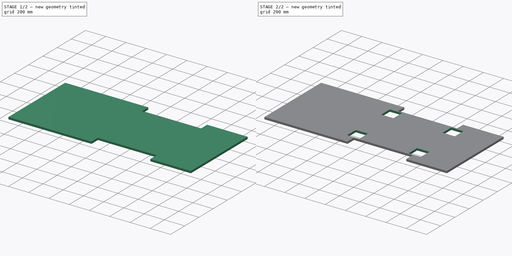
[diagram: build sequence overview — one tinted view per stage of 2, left to right]
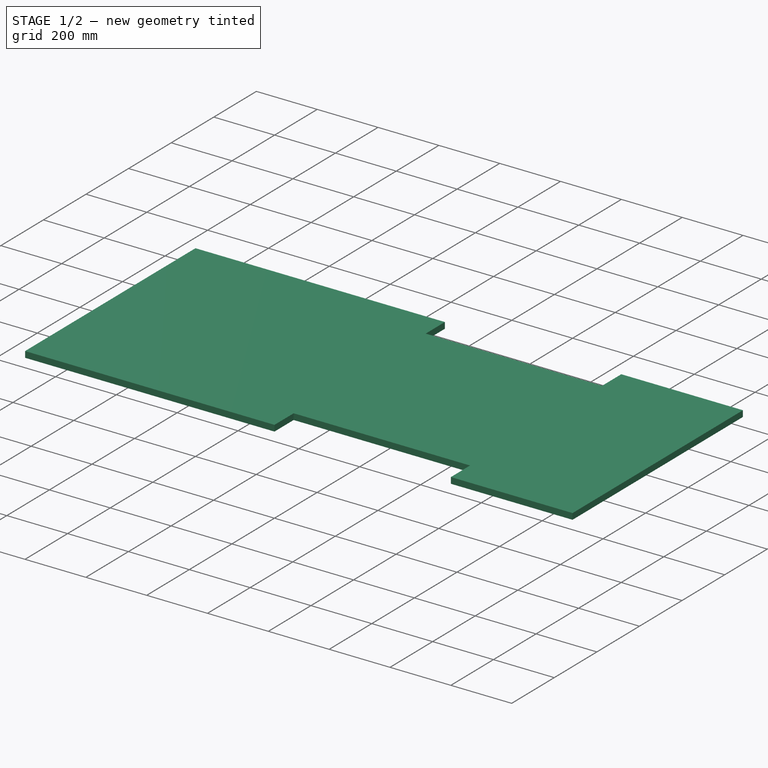
[diagram: stage 1 of 2 — iso view after this stage's code; geometry added in this stage tinted green]
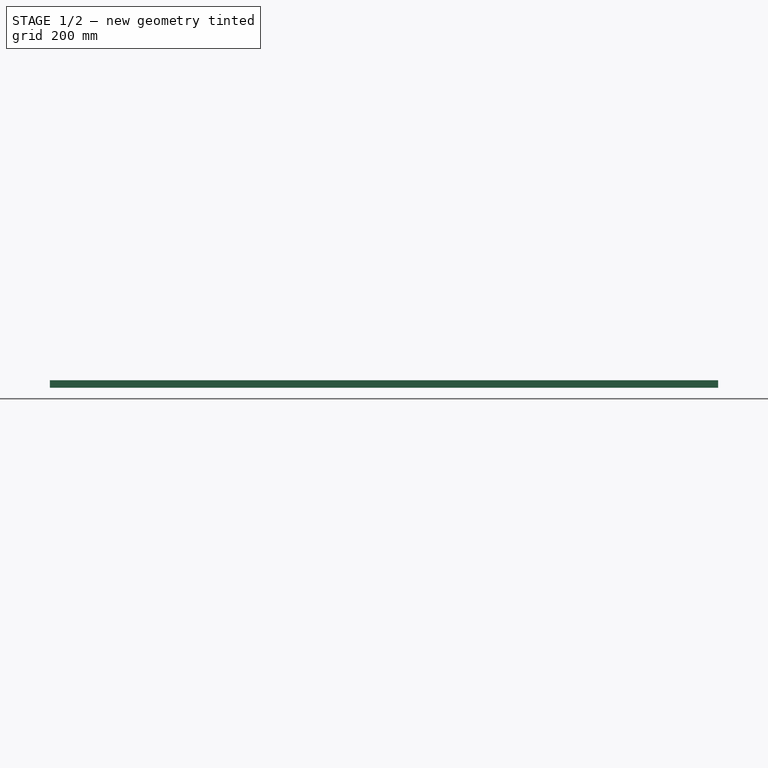
[diagram: stage 1 of 2 — front view after this stage's code; geometry added in this stage tinted green]
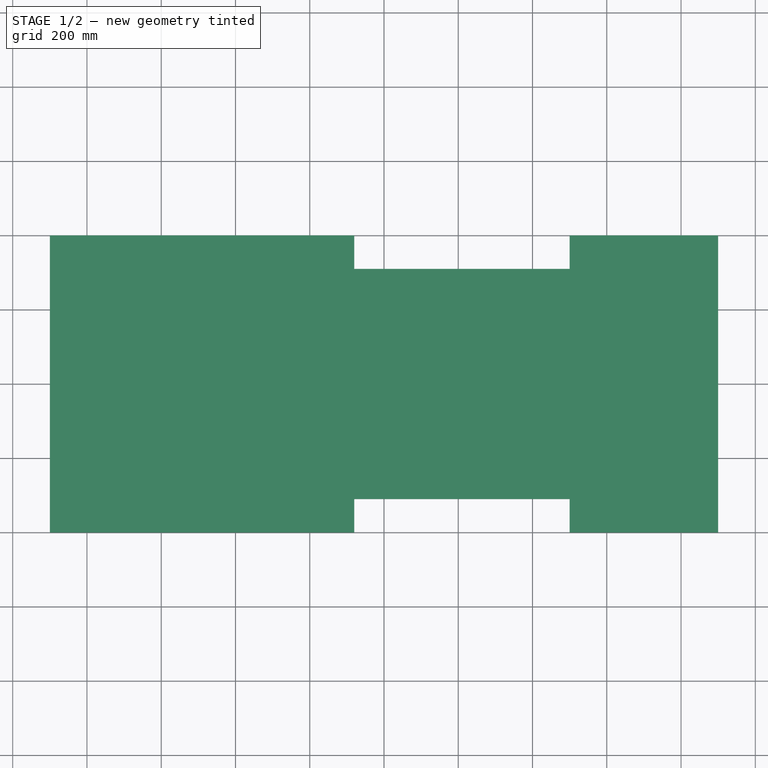
[diagram: stage 1 of 2 — top view after this stage's code; geometry added in this stage tinted green]
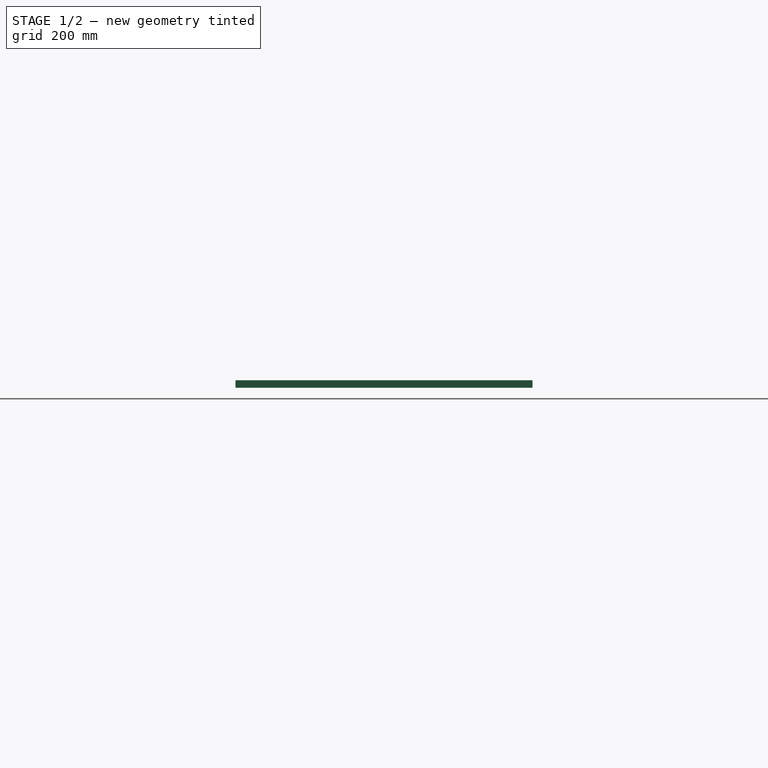
[diagram: stage 1 of 2 — right view after this stage's code; geometry added in this stage tinted green]
FCSTD DOCUMENT  (FreeCAD 0.20R29603 (Git))
Label: Grundplatte
License: All rights reserved
LicenseURL: http://en.wikipedia.org/wiki/All_rights_reserved
objects: Sketcher::SketchObject×3, PartDesign::Pocket×2, PartDesign::Pad×1, PartDesign::Body×1
note: 10 computed .brp shape members not serialized (recipe doc carries the construction recipe); baked Part::Feature solids carry a one-line shape summary decoded from their .brp

FEATURE [Sketcher::SketchObject] Sketch
  FullyConstrained = true
  MapMode = 5
  Support = -> [XY_Plane]
  sketch-geometry (5):
    g0: LineSegment StartX=-900 StartY=400 StartZ=0 EndX=-900 EndY=-400 EndZ=0
    g1: LineSegment StartX=-900 StartY=-400 StartZ=0 EndX=900 EndY=-400 EndZ=0
    g2: LineSegment StartX=900 StartY=-400 StartZ=0 EndX=900 EndY=400 EndZ=0
    g3: LineSegment StartX=900 StartY=400 StartZ=0 EndX=-900 EndY=400 EndZ=0
    g4: GeomPoint X=-1e-16 Y=0 Z=0
  constraints (12):
    c: Coincident(g0,g1)
    c: Coincident(g1,g2)
    c: Coincident(g2,g3)
    c: Coincident(g3,g0)
    c: Horizontal(g1)
    c: Horizontal(g3)
    c: Vertical(g0)
    c: Vertical(g2)
    c: Symmetric(g1,g0,g4)
    c: Coincident(g4,g-1)
    c: Distance(g3) = 1800
    c: Distance(g0) = 800
FEATURE [PartDesign::Pad] Pad
  Direction = (0,0,1)
  Length = 20
  Length2 = 10
  Profile = -> Sketch
  ReferenceAxis = -> Sketch [N_Axis]
  Type = 0
FEATURE [Sketcher::SketchObject] Sketch001
  ExternalGeometry = -> [Pad]
  FullyConstrained = true
  MapMode = 5
  Placement = pos=(0,0,20) rot=(0,0,1;0rad)
  Support = -> [Pad]
  sketch-geometry (8):
    g0: LineSegment StartX=500 StartY=-400 StartZ=0 EndX=-80 EndY=-400 EndZ=0
    g1: LineSegment StartX=-80 StartY=-400 StartZ=0 EndX=-80 EndY=-310 EndZ=0
    g2: LineSegment StartX=-80 StartY=-310 StartZ=0 EndX=500 EndY=-310 EndZ=0
    g3: LineSegment StartX=500 StartY=-310 StartZ=0 EndX=500 EndY=-400 EndZ=0
    g4: LineSegment StartX=500 StartY=400 StartZ=0 EndX=-80 EndY=400 EndZ=0
    g5: LineSegment StartX=-80 StartY=400 StartZ=0 EndX=-80 EndY=310 EndZ=0
    g6: LineSegment StartX=-80 StartY=310 StartZ=0 EndX=500 EndY=310 EndZ=0
    g7: LineSegment StartX=500 StartY=310 StartZ=0 EndX=500 EndY=400 EndZ=0
  constraints (24):
    c: Coincident(g0,g1)
    c: Coincident(g1,g2)
    c: Coincident(g2,g3)
    c: Coincident(g3,g0)
    c: Horizontal(g0)
    c: Horizontal(g2)
    c: Vertical(g1)
    c: Vertical(g3)
    c: PointOnObject(g0,g-4)
    c: Distance(g0,g-3) = 400
    c: Distance(g2) = 580
    c: Distance(g1) = 90
    c: Coincident(g4,g5)
    c: Coincident(g5,g6)
    c: Coincident(g6,g7)
    c: Coincident(g7,g4)
    c: Horizontal(g4)
    c: Horizontal(g6)
    c: Vertical(g5)
    c: Vertical(g7)
    c: PointOnObject(g4,g-5)
    c: Distance(g4,g-3) = 400
    c: Distance(g6) = 580
    c: Distance(g5) = 90
FEATURE [PartDesign::Pocket] Pocket
  BaseFeature = -> Pad
  Direction = (0,0,-1)
  Length = 20
  Length2 = 5
  Profile = -> Sketch001
  ReferenceAxis = -> Sketch001 [N_Axis]
  Type = 0
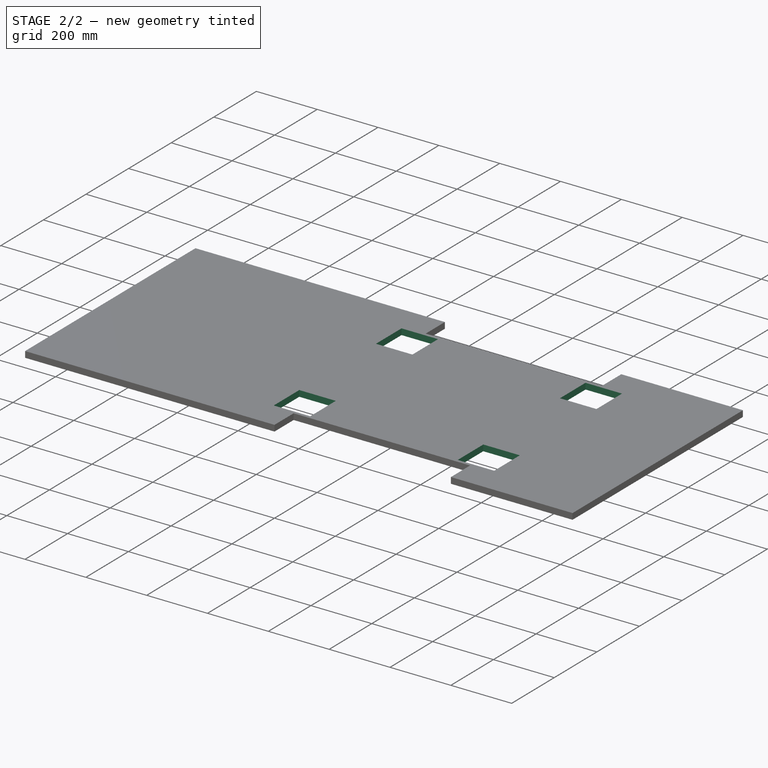
[diagram: stage 2 of 2 — iso view after this stage's code; geometry added in this stage tinted green]
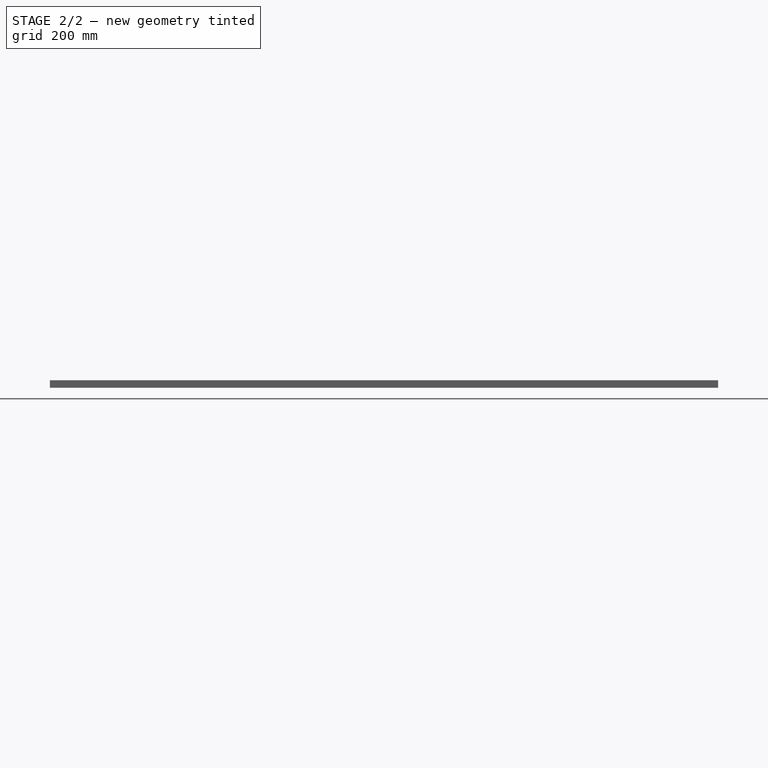
[diagram: stage 2 of 2 — front view after this stage's code; geometry added in this stage tinted green]
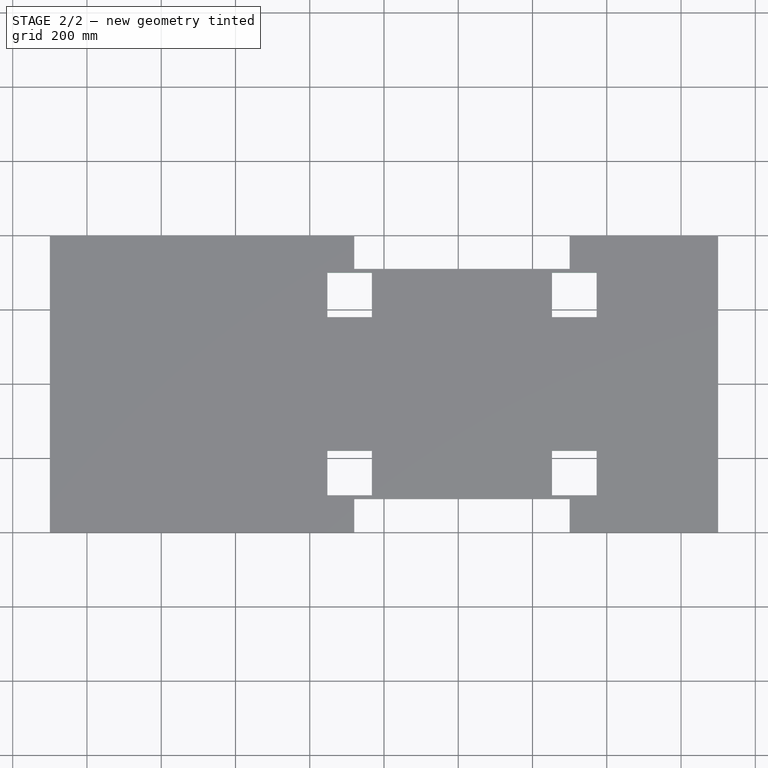
[diagram: stage 2 of 2 — top view after this stage's code; geometry added in this stage tinted green]
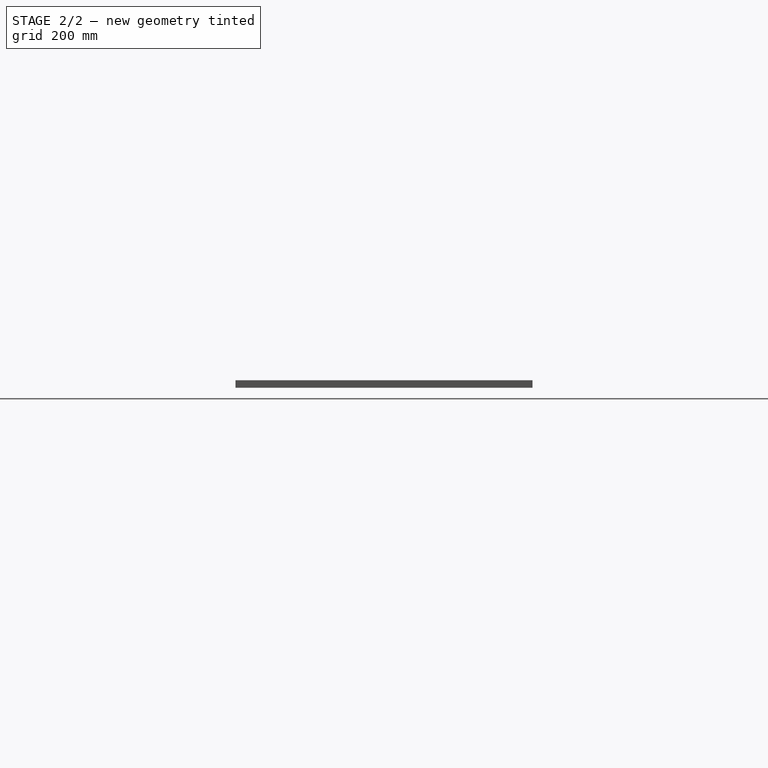
[diagram: stage 2 of 2 — right view after this stage's code; geometry added in this stage tinted green]
FEATURE [Sketcher::SketchObject] Sketch002
  ExternalGeometry = -> [Pocket]
  FullyConstrained = true
  MapMode = 5
  Placement = pos=(0,0,0) rot=(1,0,0;3.14159rad)
  Support = -> [Pocket]
  sketch-geometry (20):
    g0: LineSegment StartX=-152.5 StartY=300 StartZ=0 EndX=-152.5 EndY=180 EndZ=0
    g1: LineSegment StartX=-152.5 StartY=180 StartZ=0 EndX=-32.5 EndY=180 EndZ=0
    g2: LineSegment StartX=-32.5 StartY=180 StartZ=0 EndX=-32.5 EndY=300 EndZ=0
    g3: LineSegment StartX=-32.5 StartY=300 StartZ=0 EndX=-152.5 EndY=300 EndZ=0
    g4: GeomPoint X=-92.5 Y=240 Z=0
    g5: LineSegment StartX=452.5 StartY=300 StartZ=0 EndX=452.5 EndY=180 EndZ=0
    g6: LineSegment StartX=452.5 StartY=180 StartZ=0 EndX=572.5 EndY=180 EndZ=0
    g7: LineSegment StartX=572.5 StartY=180 StartZ=0 EndX=572.5 EndY=300 EndZ=0
    g8: LineSegment StartX=572.5 StartY=300 StartZ=0 EndX=452.5 EndY=300 EndZ=0
    g9: GeomPoint X=512.5 Y=240 Z=0
    g10: LineSegment StartX=-152.5 StartY=-180 StartZ=0 EndX=-152.5 EndY=-300 EndZ=0
    g11: LineSegment StartX=-152.5 StartY=-300 StartZ=0 EndX=-32.5 EndY=-300 EndZ=0
    g12: LineSegment StartX=-32.5 StartY=-300 StartZ=0 EndX=-32.5 EndY=-180 EndZ=0
    g13: LineSegment StartX=-32.5 StartY=-180 StartZ=0 EndX=-152.5 EndY=-180 EndZ=0
    g14: GeomPoint X=-92.5 Y=-240 Z=0
    g15: LineSegment StartX=452.5 StartY=-180 StartZ=0 EndX=452.5 EndY=-300 EndZ=0
    g16: LineSegment StartX=452.5 StartY=-300 StartZ=0 EndX=572.5 EndY=-300 EndZ=0
    g17: LineSegment StartX=572.5 StartY=-300 StartZ=0 EndX=572.5 EndY=-180 EndZ=0
    g18: LineSegment StartX=572.5 StartY=-180 StartZ=0 EndX=452.5 EndY=-180 EndZ=0
    g19: GeomPoint X=512.5 Y=-240 Z=0
  constraints (49):
    c: Coincident(g0,g1)
    c: Coincident(g1,g2)
    c: Coincident(g2,g3)
    c: Coincident(g3,g0)
    c: Horizontal(g1)
    c: Horizontal(g3)
    c: Vertical(g0)
    c: Vertical(g2)
    c: Symmetric(g1,g0,g4)
    c: Coincident(g5,g6)
    c: Coincident(g6,g7)
    c: Coincident(g7,g8)
    c: Coincident(g8,g5)
    c: Horizontal(g8)
    c: Vertical(g5)
    c: Vertical(g7)
    c: Symmetric(g6,g5,g9)
    c: Coincident(g10,g11)
    c: Coincident(g11,g12)
    c: Coincident(g12,g13)
    c: Coincident(g13,g10)
    c: Horizontal(g11)
    c: Horizontal(g13)
    c: Vertical(g10)
    c: Vertical(g12)
    c: Symmetric(g11,g10,g14)
    c: Coincident(g15,g16)
    c: Coincident(g16,g17)
    c: Coincident(g17,g18)
    c: Coincident(g18,g15)
    c: Horizontal(g16)
    c: Horizontal(g18)
    c: Vertical(g15)
    c: Vertical(g17)
    c: Symmetric(g16,g15,g19)
    c: Symmetric(g4,g14,g-1)
    c: Equal(g2,g12)
    c: Equal(g12,g17)
    c: Equal(g17,g7)
    c: Equal(g1,g6)
    c: Equal(g6,g16)
    c: Equal(g16,g11)
    c: Distance(g8) = 120
    c: Distance(g7) = 120
    c: Symmetric(g9,g19,g-1)
    c: Tangent(g1,g6)
    c: Distance(g4,g14) = 480
    c: Distance(g14,g-4) = 12.5
    c: Distance(g19,g-3) = 12.5
FEATURE [PartDesign::Pocket] Pocket001
  BaseFeature = -> Pocket
  Direction = (0,0,1)
  Length = 20
  Length2 = 5
  Profile = -> Sketch002
  ReferenceAxis = -> Sketch002 [N_Axis]
  Type = 0
FEATURE [PartDesign::Body] Body  label="GrundplatteInnen"
  Group = -> [Sketch,Pad,Sketch001,Pocket,Sketch002,Pocket001]
  Origin = -> Origin
  Tip = -> Pocket001
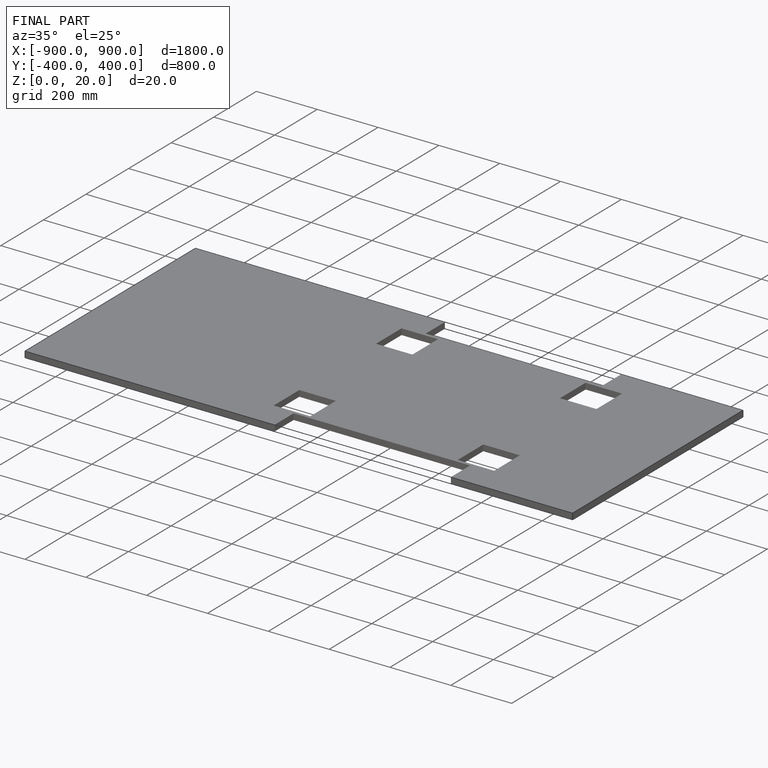
[diagram: finished part — iso view with bounding-box wireframe]
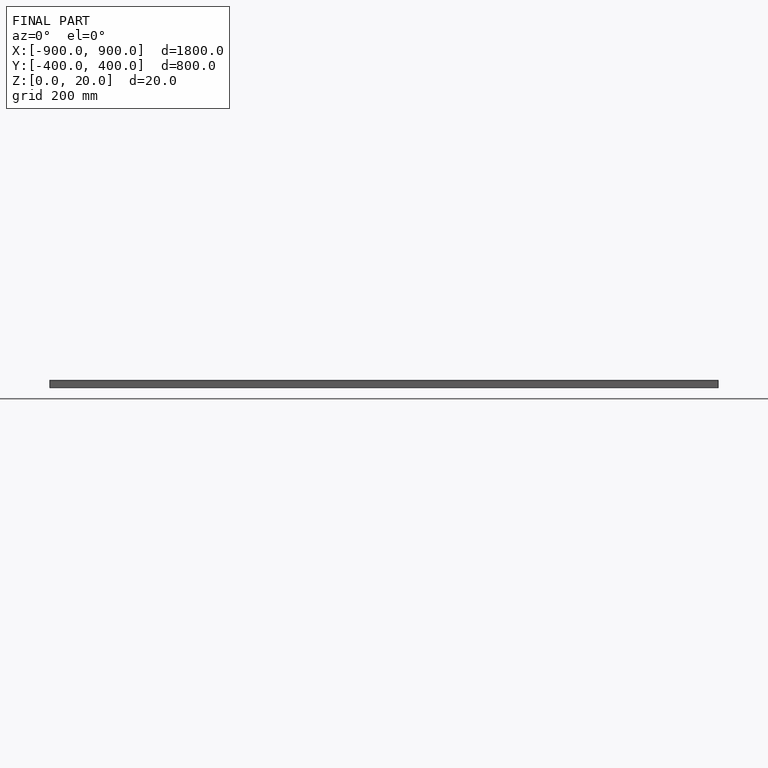
[diagram: finished part — front view with bounding-box wireframe]
